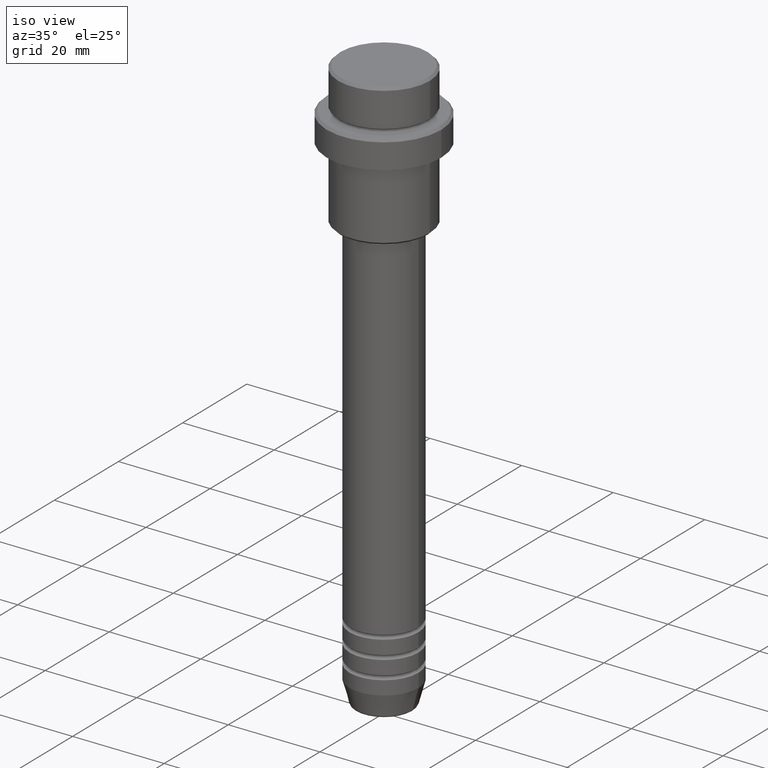
[diagram: clean part render]
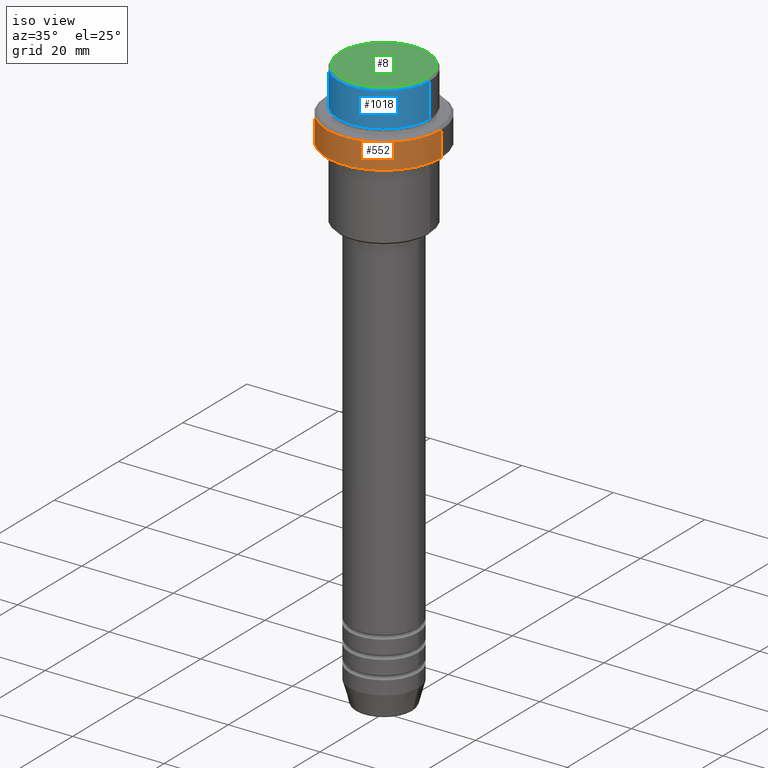
[diagram: same view with three faces highlighted in distinct colors, each labeled with its STEP entity id]
A machine part, iso view with three faces highlighted in distinct colors.
Their STEP definitions:

[orange] entity #552 — the highlighted cylindrical surface (partial cylindrical patch) has radius 12.5 mm, axis along (-0, -0, 1).
#29 = ORIENTED_EDGE ( 'NONE', *, *, #395, .T. ) ;
#53 = CARTESIAN_POINT ( 'NONE',  ( 0.000000000000000000, 0.000000000000000000, -9.499999999999992895 ) ) ;
#152 = EDGE_CURVE ( 'NONE', #898, #245, #665, .T. ) ;
#165 = AXIS2_PLACEMENT_3D ( 'NONE', #53, #276, #610 ) ;
#204 = CARTESIAN_POINT ( 'NONE',  ( -12.50000000000000000, 1.530808498934191521E-15, -15.00000000000000178 ) ) ;
#245 = VERTEX_POINT ( 'NONE', #883 ) ;
#257 = DIRECTION ( 'NONE',  ( 1.000000000000000000, 0.000000000000000000, 0.000000000000000000 ) ) ;
#261 = CARTESIAN_POINT ( 'NONE',  ( 0.000000000000000000, 0.000000000000000000, 0.000000000000000000 ) ) ;
#270 = VECTOR ( 'NONE', #491, 1000.000000000000000 ) ;
#276 = DIRECTION ( 'NONE',  ( 0.000000000000000000, 0.000000000000000000, -1.000000000000000000 ) ) ;
#338 = EDGE_CURVE ( 'NONE', #898, #747, #370, .T. ) ;
#368 = AXIS2_PLACEMENT_3D ( 'NONE', #261, #1117, #802 ) ;
#370 = LINE ( 'NONE', #1157, #270 ) ;
#395 = EDGE_CURVE ( 'NONE', #245, #1096, #868, .T. ) ;
#473 = EDGE_LOOP ( 'NONE', ( #1317, #958, #29, #1230 ) ) ;
#491 = DIRECTION ( 'NONE',  ( -0.000000000000000000, -0.000000000000000000, 1.000000000000000000 ) ) ;
#509 = EDGE_CURVE ( 'NONE', #1096, #747, #1055, .T. ) ;
#515 = CARTESIAN_POINT ( 'NONE',  ( 0.000000000000000000, 0.000000000000000000, -15.00000000000000178 ) ) ;
#552 = ADVANCED_FACE ( 'NONE', ( #1037 ), #910, .T. ) ;
#610 = DIRECTION ( 'NONE',  ( 1.000000000000000000, 0.000000000000000000, 0.000000000000000000 ) ) ;
#653 = CARTESIAN_POINT ( 'NONE',  ( 12.50000000000000000, 0.000000000000000000, 0.000000000000000000 ) ) ;
#665 = CIRCLE ( 'NONE', #1211, 12.50000000000000000 ) ;
#687 = CARTESIAN_POINT ( 'NONE',  ( -12.50000000000000000, 1.530808498934191521E-15, -9.499999999999992895 ) ) ;
#737 = VECTOR ( 'NONE', #884, 1000.000000000000000 ) ;
#747 = VERTEX_POINT ( 'NONE', #687 ) ;
#802 = DIRECTION ( 'NONE',  ( 1.000000000000000000, 0.000000000000000000, 0.000000000000000000 ) ) ;
#868 = LINE ( 'NONE', #653, #737 ) ;
#883 = CARTESIAN_POINT ( 'NONE',  ( 12.50000000000000000, 0.000000000000000000, -15.00000000000000178 ) ) ;
#884 = DIRECTION ( 'NONE',  ( -0.000000000000000000, -0.000000000000000000, 1.000000000000000000 ) ) ;
#898 = VERTEX_POINT ( 'NONE', #204 ) ;
#903 = CARTESIAN_POINT ( 'NONE',  ( 12.50000000000000000, 0.000000000000000000, -9.499999999999992895 ) ) ;
#910 = CYLINDRICAL_SURFACE ( 'NONE', #368, 12.50000000000000000 ) ;
#938 = DIRECTION ( 'NONE',  ( -0.000000000000000000, -0.000000000000000000, 1.000000000000000000 ) ) ;
#958 = ORIENTED_EDGE ( 'NONE', *, *, #152, .T. ) ;
#1037 = FACE_OUTER_BOUND ( 'NONE', #473, .T. ) ;
#1055 = CIRCLE ( 'NONE', #165, 12.50000000000000000 ) ;
#1096 = VERTEX_POINT ( 'NONE', #903 ) ;
#1117 = DIRECTION ( 'NONE',  ( -0.000000000000000000, -0.000000000000000000, 1.000000000000000000 ) ) ;
#1157 = CARTESIAN_POINT ( 'NONE',  ( -12.50000000000000000, 1.530808498934191521E-15, 0.000000000000000000 ) ) ;
#1211 = AXIS2_PLACEMENT_3D ( 'NONE', #515, #938, #257 ) ;
#1230 = ORIENTED_EDGE ( 'NONE', *, *, #509, .T. ) ;
#1317 = ORIENTED_EDGE ( 'NONE', *, *, #338, .F. ) ;

[blue] entity #1018 — the highlighted cylindrical surface (partial cylindrical patch) has radius 10 mm, axis along (-0, -0, 1).
#62 = VERTEX_POINT ( 'NONE', #492 ) ;
#93 = DIRECTION ( 'NONE',  ( 1.000000000000000000, 0.000000000000000000, 0.000000000000000000 ) ) ;
#107 = EDGE_CURVE ( 'NONE', #928, #1402, #177, .T. ) ;
#137 = DIRECTION ( 'NONE',  ( -0.000000000000000000, -0.000000000000000000, 1.000000000000000000 ) ) ;
#170 = DIRECTION ( 'NONE',  ( -0.000000000000000000, -0.000000000000000000, 1.000000000000000000 ) ) ;
#177 = LINE ( 'NONE', #850, #285 ) ;
#278 = DIRECTION ( 'NONE',  ( 1.000000000000000000, 0.000000000000000000, 0.000000000000000000 ) ) ;
#285 = VECTOR ( 'NONE', #170, 1000.000000000000000 ) ;
#289 = AXIS2_PLACEMENT_3D ( 'NONE', #970, #745, #93 ) ;
#322 = CARTESIAN_POINT ( 'NONE',  ( -9.999999999999998224, 1.224646799147353059E-15, -7.999999999999998224 ) ) ;
#372 = VECTOR ( 'NONE', #1097, 1000.000000000000000 ) ;
#389 = CIRCLE ( 'NONE', #739, 9.999999999999998224 ) ;
#492 = CARTESIAN_POINT ( 'NONE',  ( 9.999999999999998224, 0.000000000000000000, -0.4999999999999831246 ) ) ;
#495 = CARTESIAN_POINT ( 'NONE',  ( 9.999999999999998224, 0.000000000000000000, -7.999999999999998224 ) ) ;
#519 = CYLINDRICAL_SURFACE ( 'NONE', #289, 9.999999999999998224 ) ;
#582 = VERTEX_POINT ( 'NONE', #495 ) ;
#739 = AXIS2_PLACEMENT_3D ( 'NONE', #1151, #137, #278 ) ;
#745 = DIRECTION ( 'NONE',  ( -0.000000000000000000, -0.000000000000000000, 1.000000000000000000 ) ) ;
#815 = CARTESIAN_POINT ( 'NONE',  ( 0.000000000000000000, 0.000000000000000000, -0.4999999999999831246 ) ) ;
#850 = CARTESIAN_POINT ( 'NONE',  ( -9.999999999999998224, 1.224646799147353059E-15, 0.000000000000000000 ) ) ;
#928 = VERTEX_POINT ( 'NONE', #322 ) ;
#956 = EDGE_CURVE ( 'NONE', #582, #62, #961, .T. ) ;
#961 = LINE ( 'NONE', #1062, #372 ) ;
#970 = CARTESIAN_POINT ( 'NONE',  ( 0.000000000000000000, 0.000000000000000000, 0.000000000000000000 ) ) ;
#980 = ORIENTED_EDGE ( 'NONE', *, *, #107, .F. ) ;
#1018 = ADVANCED_FACE ( 'NONE', ( #1182 ), #519, .T. ) ;
#1025 = AXIS2_PLACEMENT_3D ( 'NONE', #815, #1123, #1334 ) ;
#1027 = EDGE_LOOP ( 'NONE', ( #980, #1217, #1204, #1262 ) ) ;
#1062 = CARTESIAN_POINT ( 'NONE',  ( 9.999999999999998224, 0.000000000000000000, 0.000000000000000000 ) ) ;
#1097 = DIRECTION ( 'NONE',  ( -0.000000000000000000, -0.000000000000000000, 1.000000000000000000 ) ) ;
#1119 = EDGE_CURVE ( 'NONE', #62, #1402, #1299, .T. ) ;
#1123 = DIRECTION ( 'NONE',  ( 0.000000000000000000, 0.000000000000000000, -1.000000000000000000 ) ) ;
#1151 = CARTESIAN_POINT ( 'NONE',  ( 0.000000000000000000, 0.000000000000000000, -7.999999999999998224 ) ) ;
#1182 = FACE_OUTER_BOUND ( 'NONE', #1027, .T. ) ;
#1204 = ORIENTED_EDGE ( 'NONE', *, *, #956, .T. ) ;
#1213 = EDGE_CURVE ( 'NONE', #928, #582, #389, .T. ) ;
#1217 = ORIENTED_EDGE ( 'NONE', *, *, #1213, .T. ) ;
#1262 = ORIENTED_EDGE ( 'NONE', *, *, #1119, .T. ) ;
#1267 = CARTESIAN_POINT ( 'NONE',  ( -9.999999999999998224, 1.224646799147353059E-15, -0.4999999999999831246 ) ) ;
#1299 = CIRCLE ( 'NONE', #1025, 9.999999999999998224 ) ;
#1334 = DIRECTION ( 'NONE',  ( 1.000000000000000000, 0.000000000000000000, 0.000000000000000000 ) ) ;
#1402 = VERTEX_POINT ( 'NONE', #1267 ) ;

[green] entity #8 — the highlighted planar face has unit normal (0, -0, 1).
#8 = ADVANCED_FACE ( 'NONE', ( #258 ), #1325, .T. ) ;
#9 = DIRECTION ( 'NONE',  ( 0.000000000000000000, -0.000000000000000000, 1.000000000000000000 ) ) ;
#76 = EDGE_LOOP ( 'NONE', ( #1296, #291 ) ) ;
#88 = DIRECTION ( 'NONE',  ( -0.000000000000000000, -0.000000000000000000, 1.000000000000000000 ) ) ;
#117 = CARTESIAN_POINT ( 'NONE',  ( 0.000000000000000000, 0.000000000000000000, 0.000000000000000000 ) ) ;
#184 = VERTEX_POINT ( 'NONE', #1411 ) ;
#258 = FACE_OUTER_BOUND ( 'NONE', #76, .T. ) ;
#269 = AXIS2_PLACEMENT_3D ( 'NONE', #117, #9, #572 ) ;
#291 = ORIENTED_EDGE ( 'NONE', *, *, #1349, .T. ) ;
#352 = CIRCLE ( 'NONE', #999, 9.500000000000008882 ) ;
#572 = DIRECTION ( 'NONE',  ( 1.000000000000000000, 0.000000000000000000, 0.000000000000000000 ) ) ;
#615 = EDGE_CURVE ( 'NONE', #810, #184, #641, .T. ) ;
#641 = CIRCLE ( 'NONE', #995, 9.500000000000008882 ) ;
#741 = CARTESIAN_POINT ( 'NONE',  ( 0.000000000000000000, 0.000000000000000000, 0.000000000000000000 ) ) ;
#810 = VERTEX_POINT ( 'NONE', #811 ) ;
#811 = CARTESIAN_POINT ( 'NONE',  ( -9.500000000000008882, 0.000000000000000000, 0.000000000000000000 ) ) ;
#981 = DIRECTION ( 'NONE',  ( -0.000000000000000000, -0.000000000000000000, 1.000000000000000000 ) ) ;
#989 = CARTESIAN_POINT ( 'NONE',  ( 0.000000000000000000, 0.000000000000000000, 0.000000000000000000 ) ) ;
#995 = AXIS2_PLACEMENT_3D ( 'NONE', #989, #981, #1311 ) ;
#999 = AXIS2_PLACEMENT_3D ( 'NONE', #741, #88, #1074 ) ;
#1074 = DIRECTION ( 'NONE',  ( 1.000000000000000000, 0.000000000000000000, 0.000000000000000000 ) ) ;
#1296 = ORIENTED_EDGE ( 'NONE', *, *, #615, .T. ) ;
#1311 = DIRECTION ( 'NONE',  ( 1.000000000000000000, 0.000000000000000000, 0.000000000000000000 ) ) ;
#1325 = PLANE ( 'NONE',  #269 ) ;
#1349 = EDGE_CURVE ( 'NONE', #184, #810, #352, .T. ) ;
#1411 = CARTESIAN_POINT ( 'NONE',  ( 9.500000000000008882, 1.194030629168669864E-15, 0.000000000000000000 ) ) ;